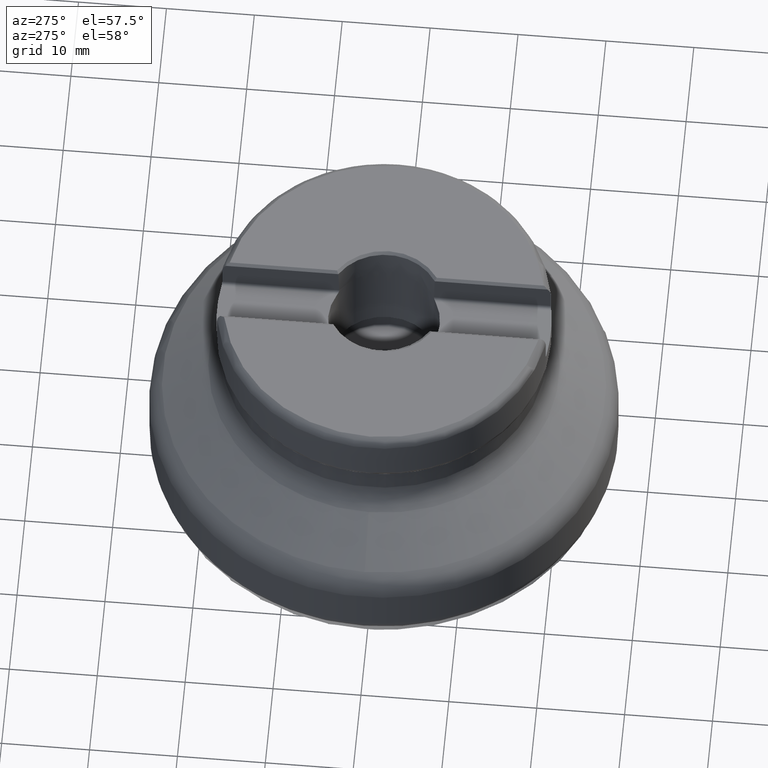
[diagram: clean part render]
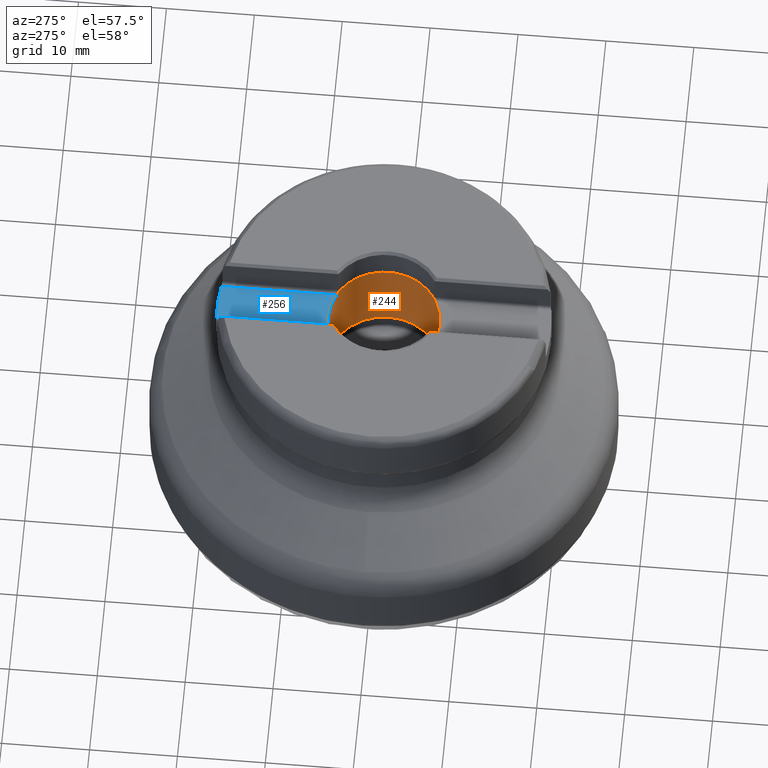
[diagram: same view with the hole feature highlighted: cylindrical wall and planar end face, labeled with their STEP entity ids]
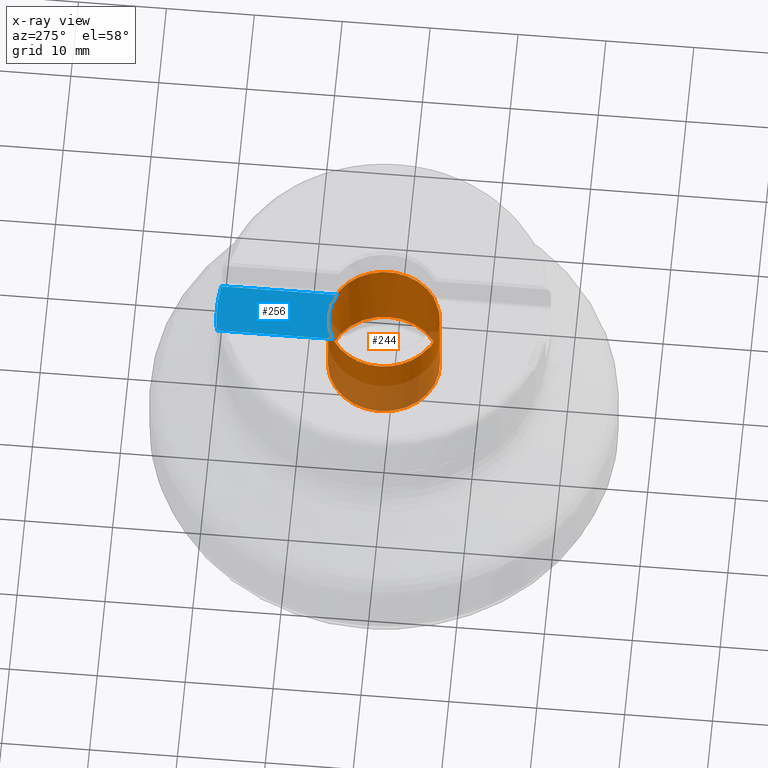
[diagram: x-ray of the same camera — body ghosted, the hole faces saturated]
A machine part, auxiliary view. The highlighted faces form one hole feature of diameter 12.7 mm: the cylindrical wall (entity #244, orange) and its adjacent planar end face (entity #256, blue) — they share a circular edge in the B-rep.
The next image is the same camera in x-ray (body ghosted, the hole faces saturated) — the bore reads through the body.
Wall:
#244=ADVANCED_FACE('',(#398,#399),#300,.F.);
#300=CYLINDRICAL_SURFACE('',#1229,6.35);
#398=FACE_BOUND('',#510,.T.);
#399=FACE_BOUND('',#511,.T.);
#510=EDGE_LOOP('',(#685,#686,#687,#688,#689,#690,#691,#692));
#511=EDGE_LOOP('',(#693));
#685=ORIENTED_EDGE('',*,*,#998,.T.);
#686=ORIENTED_EDGE('',*,*,#984,.F.);
#687=ORIENTED_EDGE('',*,*,#999,.T.);
#688=ORIENTED_EDGE('',*,*,#1000,.F.);
#689=ORIENTED_EDGE('',*,*,#1001,.T.);
#690=ORIENTED_EDGE('',*,*,#990,.F.);
#691=ORIENTED_EDGE('',*,*,#1002,.T.);
#692=ORIENTED_EDGE('',*,*,#1003,.F.);
#693=ORIENTED_EDGE('',*,*,#1004,.F.);
#885=VERTEX_POINT('',#2058);
#886=VERTEX_POINT('',#2060);
#891=VERTEX_POINT('',#2089);
#892=VERTEX_POINT('',#2091);
#895=VERTEX_POINT('',#2129);
#896=VERTEX_POINT('',#2143);
#897=VERTEX_POINT('',#2145);
#898=VERTEX_POINT('',#2172);
#899=VERTEX_POINT('',#2175);
#984=EDGE_CURVE('',#885,#886,#1076,.T.);
#990=EDGE_CURVE('',#891,#892,#1078,.T.);
#998=EDGE_CURVE('',#895,#886,#1157,.T.);
#999=EDGE_CURVE('',#885,#896,#1158,.T.);
#1000=EDGE_CURVE('',#897,#896,#1079,.T.);
#1001=EDGE_CURVE('',#897,#892,#1159,.T.);
#1002=EDGE_CURVE('',#891,#898,#1160,.T.);
#1003=EDGE_CURVE('',#895,#898,#1080,.T.);
#1004=EDGE_CURVE('',#899,#899,#1081,.T.);
#1076=CIRCLE('',#1217,6.35);
#1078=CIRCLE('',#1221,6.35);
#1079=CIRCLE('',#1226,6.35);
#1080=CIRCLE('',#1227,6.35);
#1081=CIRCLE('',#1228,6.35);
#1157=B_SPLINE_CURVE_WITH_KNOTS('',3,(#2116,#2117,#2118,#2119,#2120,#2121,
#2122,#2123,#2124,#2125,#2126,#2127,#2128),.UNSPECIFIED.,.F.,.F.,(4,3,3,
3,4),(0.,0.0790182769129658,0.395179230646466,0.717515965129693,1.),
 .UNSPECIFIED.);
#1158=B_SPLINE_CURVE_WITH_KNOTS('',3,(#2130,#2131,#2132,#2133,#2134,#2135,
#2136,#2137,#2138,#2139,#2140,#2141,#2142),.UNSPECIFIED.,.F.,.F.,(4,3,3,
3,4),(0.,0.25591027881195,0.509994869755762,0.793918638647002,1.),
 .UNSPECIFIED.);
#1159=B_SPLINE_CURVE_WITH_KNOTS('',3,(#2146,#2147,#2148,#2149,#2150,#2151,
#2152,#2153,#2154,#2155,#2156,#2157,#2158),.UNSPECIFIED.,.F.,.F.,(4,3,3,
3,4),(0.,0.321493337638325,0.643878445543101,0.948669960253119,1.),
 .UNSPECIFIED.);
#1160=B_SPLINE_CURVE_WITH_KNOTS('',3,(#2159,#2160,#2161,#2162,#2163,#2164,
#2165,#2166,#2167,#2168,#2169,#2170,#2171),.UNSPECIFIED.,.F.,.F.,(4,3,3,
3,4),(0.,0.256236592827544,0.510645169832217,0.794930973048821,1.),
 .UNSPECIFIED.);
#1217=AXIS2_PLACEMENT_3D('',#2059,#1393,#1394);
#1221=AXIS2_PLACEMENT_3D('',#2090,#1401,#1402);
#1226=AXIS2_PLACEMENT_3D('',#2144,#1415,#1416);
#1227=AXIS2_PLACEMENT_3D('',#2173,#1417,#1418);
#1228=AXIS2_PLACEMENT_3D('',#2174,#1419,#1420);
#1229=AXIS2_PLACEMENT_3D('',#2176,#1421,#1422);
#1393=DIRECTION('',(-1.17145536458252E-15,3.51436609374757E-15,-1.));
#1394=DIRECTION('',(-1.,0.,1.09273919746571E-15));
#1401=DIRECTION('',(-1.17145536458252E-15,3.51436609374757E-15,-1.));
#1402=DIRECTION('',(-1.,0.,1.09273919746571E-15));
#1415=DIRECTION('',(-1.17145536458252E-15,3.51436609374757E-15,-1.));
#1416=DIRECTION('',(-1.,0.,1.09273919746571E-15));
#1417=DIRECTION('',(-1.17145536458252E-15,3.51436609374757E-15,-1.));
#1418=DIRECTION('',(-1.,0.,1.09273919746571E-15));
#1419=DIRECTION('',(1.17145536458252E-15,-3.51436609374757E-15,1.));
#1420=DIRECTION('',(-1.,0.,1.09273919746571E-15));
#1421=DIRECTION('',(1.17145536458252E-15,-3.51436609374757E-15,1.));
#1422=DIRECTION('',(-1.,0.,1.09273919746571E-15));
#2058=CARTESIAN_POINT('',(3.35117017425632,5.39371471837118,31.125));
#2059=CARTESIAN_POINT('',(3.64615482226311E-14,-1.09384644667893E-13,31.125));
#2060=CARTESIAN_POINT('',(3.35117017425632,-5.3937147183714,31.125));
#2089=CARTESIAN_POINT('',(-3.35117017425624,-5.3937147183714,31.125));
#2090=CARTESIAN_POINT('',(3.64615482226311E-14,-1.09384644667893E-13,31.125));
#2091=CARTESIAN_POINT('',(-3.35117017425624,5.39371471837119,31.125));
#2116=CARTESIAN_POINT('',(2.97500000000004,-5.60997994648833,30.861));
#2117=CARTESIAN_POINT('',(2.98754432715449,-5.60332762800583,30.861));
#2118=CARTESIAN_POINT('',(3.00007697588209,-5.59662741067338,30.8615908213651));
#2119=CARTESIAN_POINT('',(3.01253363391105,-5.58991423051876,30.862764860509));
#2120=CARTESIAN_POINT('',(3.0619698571628,-5.56327191023657,30.8674242210763));
#2121=CARTESIAN_POINT('',(3.11103545194243,-5.53593889057275,30.8815100858045));
#2122=CARTESIAN_POINT('',(3.15579882444701,-5.51030251253235,30.9041922295148));
#2123=CARTESIAN_POINT('',(3.20132705996882,-5.48422809069941,30.9272619385918));
#2124=CARTESIAN_POINT('',(3.24383920877791,-5.45908899436682,30.9600486020292));
#2125=CARTESIAN_POINT('',(3.27857849139434,-5.43814518708059,31.0005386793346));
#2126=CARTESIAN_POINT('',(3.30904188300894,-5.41977925217326,31.0360450280143));
#2127=CARTESIAN_POINT('',(3.33445088773294,-5.40410258225696,31.0787551696695));
#2128=CARTESIAN_POINT('',(3.35117017425632,-5.3937147183714,31.125));
#2129=CARTESIAN_POINT('',(2.97500000000004,-5.60997994648833,30.861));
#2130=CARTESIAN_POINT('',(3.35117017425632,5.39371471837118,31.125));
#2131=CARTESIAN_POINT('',(3.33600911179832,5.40313444169215,31.0830651506858));
#2132=CARTESIAN_POINT('',(3.31374708615995,5.41687653282446,31.0440499883782));
#2133=CARTESIAN_POINT('',(3.28708441123691,5.4330080133755,31.0107934448042));
#2134=CARTESIAN_POINT('',(3.26053799927655,5.44906915238253,30.9776819168484));
#2135=CARTESIAN_POINT('',(3.22899731185935,5.46787272028647,30.9493101118303));
#2136=CARTESIAN_POINT('',(3.19491064863151,5.48771773574954,30.9268753127671));
#2137=CARTESIAN_POINT('',(3.15685758278545,5.50987196290533,30.9018299488285));
#2138=CARTESIAN_POINT('',(3.11471122185404,5.53385258288426,30.8835432201152));
#2139=CARTESIAN_POINT('',(3.07138530609737,5.55779563329637,30.8727863052795));
#2140=CARTESIAN_POINT('',(3.03995731249609,5.57516357629319,30.8649833946031));
#2141=CARTESIAN_POINT('',(3.00746344602775,5.5927644211469,30.861));
#2142=CARTESIAN_POINT('',(2.97500000000004,5.60997994648811,30.861));
#2143=CARTESIAN_POINT('',(2.97500000000004,5.60997994648811,30.861));
#2144=CARTESIAN_POINT('',(3.61522840063813E-14,-1.08456852019144E-13,30.861));
#2145=CARTESIAN_POINT('',(-2.97499999999996,5.60997994648812,30.861));
#2146=CARTESIAN_POINT('',(-2.97499999999996,5.60997994648812,30.861));
#2147=CARTESIAN_POINT('',(-3.02560702100976,5.5831427939599,30.861));
#2148=CARTESIAN_POINT('',(-3.07652997452055,5.55521280895024,30.8707885960296));
#2149=CARTESIAN_POINT('',(-3.12362571777916,5.5286040168588,30.8896371100734));
#2150=CARTESIAN_POINT('',(-3.17078839146812,5.5019574095046,30.908512410809));
#2151=CARTESIAN_POINT('',(-3.2155703017076,5.47581510678822,30.9371074189299));
#2152=CARTESIAN_POINT('',(-3.2534290740148,5.45322833378117,30.9738114717764));
#2153=CARTESIAN_POINT('',(-3.2891550805135,5.4319139817814,31.0084478096873));
#2154=CARTESIAN_POINT('',(-3.31988239380425,5.41308607491104,31.0516800717963));
#2155=CARTESIAN_POINT('',(-3.34105633870446,5.39998542049896,31.0997462964945));
#2156=CARTESIAN_POINT('',(-3.3446962595255,5.39773334394977,31.1080091522302));
#2157=CARTESIAN_POINT('',(-3.34807456000022,5.39563805520071,31.1164376635727));
#2158=CARTESIAN_POINT('',(-3.35117017425624,5.39371471837119,31.125));
#2159=CARTESIAN_POINT('',(-3.35117017425624,-5.3937147183714,31.125));
#2160=CARTESIAN_POINT('',(-3.33600911179824,-5.40313444169237,31.0830651506857));
#2161=CARTESIAN_POINT('',(-3.31374708615988,-5.41687653282468,31.0440499883782));
#2162=CARTESIAN_POINT('',(-3.28708441123683,-5.43300801337572,31.0107934448042));
#2163=CARTESIAN_POINT('',(-3.26053799927648,-5.44906915238275,30.9776819168484));
#2164=CARTESIAN_POINT('',(-3.22899731185927,-5.46787272028669,30.9493101118302));
#2165=CARTESIAN_POINT('',(-3.19491064863143,-5.48771773574976,30.9268753127671));
#2166=CARTESIAN_POINT('',(-3.15685758278537,-5.50987196290555,30.9018299488285));
#2167=CARTESIAN_POINT('',(-3.11471122185396,-5.53385258288448,30.8835432201152));
#2168=CARTESIAN_POINT('',(-3.0713853060973,-5.55779563329659,30.8727863052795));
#2169=CARTESIAN_POINT('',(-3.03995731249601,-5.57516357629341,30.864983394603));
#2170=CARTESIAN_POINT('',(-3.00746344602768,-5.59276442114712,30.861));
#2171=CARTESIAN_POINT('',(-2.97499999999996,-5.60997994648833,30.861));
#2172=CARTESIAN_POINT('',(-2.97499999999996,-5.60997994648833,30.861));
#2173=CARTESIAN_POINT('',(3.61522840063813E-14,-1.08456852019144E-13,30.861));
#2174=CARTESIAN_POINT('',(2.53842662951387E-14,-7.61527988854162E-14,21.669));
#2175=CARTESIAN_POINT('',(-6.34999999999998,-7.61527988854162E-14,21.669));
#2176=CARTESIAN_POINT('',(4.11473696809612E-14,-1.23442109042884E-13,35.125));
End face:
#181=PLANE('',#1252);
#209=FACE_OUTER_BOUND('',#534,.T.);
#256=ADVANCED_FACE('',(#209),#181,.T.);
#320=LINE('',#2210,#352);
#321=LINE('',#2211,#353);
#352=VECTOR('',#1467,1.);
#353=VECTOR('',#1468,1.);
#534=EDGE_LOOP('',(#716,#717,#718,#719));
#716=ORIENTED_EDGE('',*,*,#1016,.T.);
#717=ORIENTED_EDGE('',*,*,#1000,.T.);
#718=ORIENTED_EDGE('',*,*,#1017,.T.);
#719=ORIENTED_EDGE('',*,*,#941,.F.);
#846=VERTEX_POINT('',#1851);
#847=VERTEX_POINT('',#1853);
#896=VERTEX_POINT('',#2143);
#897=VERTEX_POINT('',#2145);
#941=EDGE_CURVE('',#846,#847,#1052,.T.);
#1000=EDGE_CURVE('',#897,#896,#1079,.T.);
#1016=EDGE_CURVE('',#846,#897,#320,.T.);
#1017=EDGE_CURVE('',#896,#847,#321,.T.);
#1052=CIRCLE('',#1178,19.);
#1079=CIRCLE('',#1226,6.35);
#1178=AXIS2_PLACEMENT_3D('',#1852,#1306,#1307);
#1226=AXIS2_PLACEMENT_3D('',#2144,#1415,#1416);
#1252=AXIS2_PLACEMENT_3D('',#2212,#1469,#1470);
#1306=DIRECTION('',(-1.17145536458252E-15,3.51436609374757E-15,-1.));
#1307=DIRECTION('',(4.2167729308689E-30,1.,3.46944695195362E-15));
#1415=DIRECTION('',(-1.17145536458252E-15,3.51436609374757E-15,-1.));
#1416=DIRECTION('',(-1.,0.,1.09273919746571E-15));
#1467=DIRECTION('',(-4.11692301362752E-30,-1.,-3.51436609374757E-15));
#1468=DIRECTION('',(4.11692301362752E-30,1.,3.51436609374757E-15));
#1469=DIRECTION('',(1.17145536458252E-15,-3.51436609374757E-15,1.));
#1470=DIRECTION('',(-1.,0.,1.17267306976032E-15));
#1851=CARTESIAN_POINT('',(-2.97499999999996,18.7656434741791,30.8610000000001));
#1852=CARTESIAN_POINT('',(3.61522840063813E-14,0.,30.861));
#1853=CARTESIAN_POINT('',(2.97500000000004,18.7656434741791,30.8610000000001));
#2143=CARTESIAN_POINT('',(2.97500000000004,5.60997994648811,30.861));
#2144=CARTESIAN_POINT('',(3.61522840063813E-14,-1.08456852019144E-13,30.861));
#2145=CARTESIAN_POINT('',(-2.97499999999996,5.60997994648812,30.861));
#2210=CARTESIAN_POINT('',(-2.97499999999996,24.4999999999999,30.8610000000001));
#2211=CARTESIAN_POINT('',(2.97500000000004,24.4999999999999,30.8610000000001));
#2212=CARTESIAN_POINT('',(3.37500000000004,24.4999999999999,30.8610000000001));